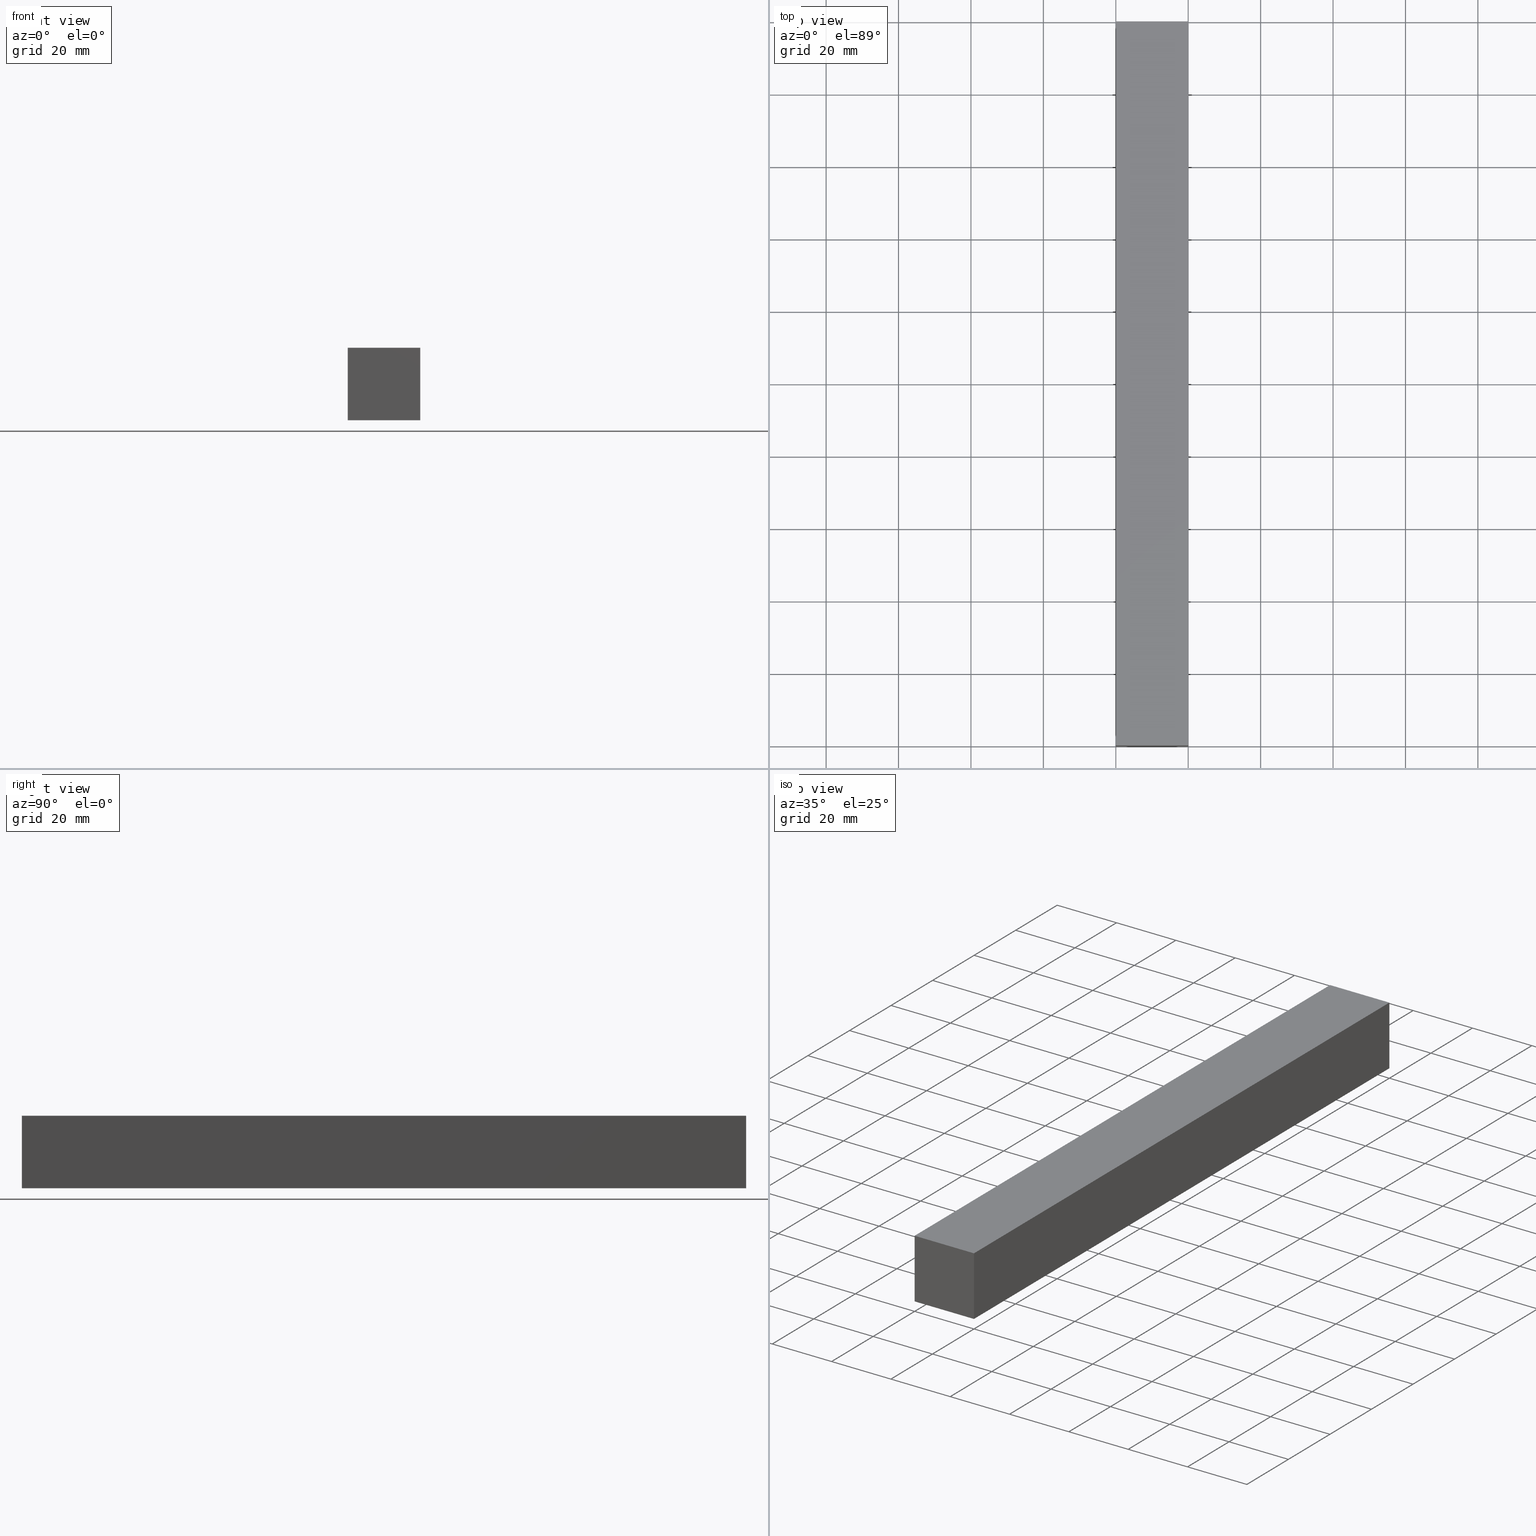
[diagram: canonical four-view strip — front | top / right | iso, engineering-drawing reading convention]
A machine part, canonical four-view strip (front | top / right | iso — engineering-drawing reading convention). The complete STEP part file that produces these views, byte-faithful:
ISO-10303-21;
HEADER;
FILE_DESCRIPTION (( 'STEP AP214' ),
    '1' );
FILE_NAME ('TM_340W_16.STEP',
    '2016-05-09T08:07:59',
    ( '' ),
    ( '' ),
    'SwSTEP 2.0',
    'SolidWorks 2015',
    '' );
FILE_SCHEMA (( 'AUTOMOTIVE_DESIGN' ));
ENDSEC;

DATA;
#1 = LINE ( 'NONE', #119, #151 ) ;
#2 = PLANE ( 'NONE',  #30 ) ;
#3 = DIRECTION ( 'NONE',  ( 1.000000000000000000, 0.0000000000000000000, 0.0000000000000000000 ) ) ;
#4 =( LENGTH_UNIT ( ) NAMED_UNIT ( * ) SI_UNIT ( .MILLI., .METRE. ) );
#5 = EDGE_CURVE ( 'NONE', #122, #221, #87, .T. ) ;
#6 = STYLED_ITEM ( 'NONE', ( #97 ), #179 ) ;
#7 = VERTEX_POINT ( 'NONE', #74 ) ;
#8 = DIRECTION ( 'NONE',  ( 0.0000000000000000000, 0.0000000000000000000, -1.000000000000000000 ) ) ;
#9 = UNCERTAINTY_MEASURE_WITH_UNIT (LENGTH_MEASURE( 1.000000000000000100E-005 ), #146, 'distance_accuracy_value', 'NONE');
#10 = DIRECTION ( 'NONE',  ( 0.0000000000000000000, 0.0000000000000000000, -1.000000000000000000 ) ) ;
#11 = APPLICATION_CONTEXT ( 'automotive_design' ) ;
#12 = FILL_AREA_STYLE_COLOUR ( '', #54 ) ;
#13 = FACE_OUTER_BOUND ( 'NONE', #182, .T. ) ;
#14 = SHAPE_REPRESENTATION ( 'TM_340W_16', ( #70, #158 ), #181 ) ;
#15 = ORIENTED_EDGE ( 'NONE', *, *, #77, .F. ) ;
#16 = EDGE_LOOP ( 'NONE', ( #113, #71, #28, #63 ) ) ;
#17 = EDGE_CURVE ( 'NONE', #152, #140, #156, .T. ) ;
#18 = MECHANICAL_DESIGN_GEOMETRIC_PRESENTATION_REPRESENTATION (  '', ( #226 ), #43 ) ;
#19 = ORIENTED_EDGE ( 'NONE', *, *, #112, .T. ) ;
#20 =( GEOMETRIC_REPRESENTATION_CONTEXT ( 3 ) GLOBAL_UNCERTAINTY_ASSIGNED_CONTEXT ( ( #85 ) ) GLOBAL_UNIT_ASSIGNED_CONTEXT ( ( #39, #229, #45 ) ) REPRESENTATION_CONTEXT ( 'NONE', 'WORKASPACE' ) );
#21 = DIRECTION ( 'NONE',  ( 0.0000000000000000000, 0.0000000000000000000, -1.000000000000000000 ) ) ;
#22 = SHAPE_DEFINITION_REPRESENTATION ( #157, #94 ) ;
#23 = ORIENTED_EDGE ( 'NONE', *, *, #129, .T. ) ;
#24 =( NAMED_UNIT ( * ) PLANE_ANGLE_UNIT ( ) SI_UNIT ( $, .RADIAN. ) );
#25 = LINE ( 'NONE', #109, #115 ) ;
#26 = DIRECTION ( 'NONE',  ( -1.000000000000000000, 0.0000000000000000000, 0.0000000000000000000 ) ) ;
#27 = PRODUCT_DEFINITION_SHAPE ( 'NONE', 'NONE',  #239 ) ;
#28 = ORIENTED_EDGE ( 'NONE', *, *, #150, .F. ) ;
#29 = EDGE_CURVE ( 'NONE', #32, #140, #201, .T. ) ;
#30 = AXIS2_PLACEMENT_3D ( 'NONE', #194, #111, #3 ) ;
#31 = AXIS2_PLACEMENT_3D ( 'NONE', #214, #195, #99 ) ;
#32 = VERTEX_POINT ( 'NONE', #101 ) ;
#33 = ADVANCED_FACE ( 'NONE', ( #203 ), #197, .F. ) ;
#34 = PRODUCT_RELATED_PRODUCT_CATEGORY ( 'part', '', ( #147 ) ) ;
#35 = VECTOR ( 'NONE', #127, 1000.000000000000000 ) ;
#36 = AXIS2_PLACEMENT_3D ( 'NONE', #233, #8, #26 ) ;
#37 = ADVANCED_FACE ( 'NONE', ( #209 ), #188, .F. ) ;
#38 = CARTESIAN_POINT ( 'NONE',  ( 0.0000000000000000000, 0.0000000000000000000, 0.0000000000000000000 ) ) ;
#39 =( LENGTH_UNIT ( ) NAMED_UNIT ( * ) SI_UNIT ( .MILLI., .METRE. ) );
#40 = AXIS2_PLACEMENT_3D ( 'NONE', #160, #172, #108 ) ;
#41 = CARTESIAN_POINT ( 'NONE',  ( 0.0000000000000000000, 0.0000000000000000000, 20.00000000000000000 ) ) ;
#42 = EDGE_CURVE ( 'NONE', #7, #183, #80, .T. ) ;
#43 =( GEOMETRIC_REPRESENTATION_CONTEXT ( 3 ) GLOBAL_UNCERTAINTY_ASSIGNED_CONTEXT ( ( #68 ) ) GLOBAL_UNIT_ASSIGNED_CONTEXT ( ( #199, #24, #213 ) ) REPRESENTATION_CONTEXT ( 'NONE', 'WORKASPACE' ) );
#44 = DIRECTION ( 'NONE',  ( -1.000000000000000000, 0.0000000000000000000, 0.0000000000000000000 ) ) ;
#45 =( NAMED_UNIT ( * ) SI_UNIT ( $, .STERADIAN. ) SOLID_ANGLE_UNIT ( ) );
#46 = PLANE ( 'NONE',  #89 ) ;
#47 = ORIENTED_EDGE ( 'NONE', *, *, #5, .F. ) ;
#48 = LINE ( 'NONE', #82, #171 ) ;
#49 = DIRECTION ( 'NONE',  ( 0.0000000000000000000, 0.0000000000000000000, 1.000000000000000000 ) ) ;
#50 = VECTOR ( 'NONE', #21, 1000.000000000000000 ) ;
#51 = ORIENTED_EDGE ( 'NONE', *, *, #224, .T. ) ;
#52 = ORIENTED_EDGE ( 'NONE', *, *, #53, .T. ) ;
#53 = EDGE_CURVE ( 'NONE', #183, #152, #164, .T. ) ;
#54 = COLOUR_RGB ( '',0.7921568627450980000, 0.8196078431372548800, 0.9333333333333333500 ) ;
#55 = APPLICATION_PROTOCOL_DEFINITION ( 'draft international standard', 'automotive_design', 1998, #139 ) ;
#56 = VECTOR ( 'NONE', #102, 1000.000000000000000 ) ;
#57 = ORIENTED_EDGE ( 'NONE', *, *, #131, .T. ) ;
#58 = DIRECTION ( 'NONE',  ( 0.0000000000000000000, 0.0000000000000000000, 1.000000000000000000 ) ) ;
#59 = ORIENTED_EDGE ( 'NONE', *, *, #42, .F. ) ;
#60 = PLANE ( 'NONE',  #138 ) ;
#61 = CARTESIAN_POINT ( 'NONE',  ( 20.00000000000000000, 0.0000000000000000000, 20.00000000000000000 ) ) ;
#62 = ADVANCED_FACE ( 'NONE', ( #126 ), #141, .F. ) ;
#63 = ORIENTED_EDGE ( 'NONE', *, *, #131, .F. ) ;
#64 = CARTESIAN_POINT ( 'NONE',  ( 20.00000000000000000, 0.0000000000000000000, 0.0000000000000000000 ) ) ;
#65 = EDGE_LOOP ( 'NONE', ( #167, #59, #132, #202 ) ) ;
#66 = FILL_AREA_STYLE_COLOUR ( '', #67 ) ;
#67 = COLOUR_RGB ( '',0.7921568627450980000, 0.8196078431372548800, 0.9333333333333333500 ) ;
#68 = UNCERTAINTY_MEASURE_WITH_UNIT (LENGTH_MEASURE( 1.000000000000000100E-005 ), #199, 'distance_accuracy_value', 'NONE');
#69 = VERTEX_POINT ( 'NONE', #121 ) ;
#70 = AXIS2_PLACEMENT_3D ( 'NONE', #106, #186, #142 ) ;
#71 = ORIENTED_EDGE ( 'NONE', *, *, #53, .F. ) ;
#72 = SHAPE_DEFINITION_REPRESENTATION ( #103, #14 ) ;
#73 = ADVANCED_BREP_SHAPE_REPRESENTATION ( '', ( #179, #31 ), #20 ) ;
#74 = CARTESIAN_POINT ( 'NONE',  ( 0.0000000000000000000, 200.0000000000000000, 0.0000000000000000000 ) ) ;
#75 = CARTESIAN_POINT ( 'NONE',  ( 20.00000000000000000, 1000.000000000000000, 20.00000000000000000 ) ) ;
#76 = DIRECTION ( 'NONE',  ( 1.000000000000000000, 0.0000000000000000000, 0.0000000000000000000 ) ) ;
#77 = EDGE_CURVE ( 'NONE', #69, #152, #96, .T. ) ;
#78 = PRODUCT_CONTEXT ( 'NONE', #117, 'mechanical' ) ;
#79 = CARTESIAN_POINT ( 'NONE',  ( 0.0000000000000000000, 0.0000000000000000000, 0.0000000000000000000 ) ) ;
#80 = LINE ( 'NONE', #81, #56 ) ;
#81 = CARTESIAN_POINT ( 'NONE',  ( 0.0000000000000000000, 1000.000000000000000, 0.0000000000000000000 ) ) ;
#82 = CARTESIAN_POINT ( 'NONE',  ( 0.0000000000000000000, 200.0000000000000000, 0.0000000000000000000 ) ) ;
#83 = PRODUCT_CONTEXT ( 'NONE', #11, 'mechanical' ) ;
#84 = DIRECTION ( 'NONE',  ( 0.0000000000000000000, -1.000000000000000000, 0.0000000000000000000 ) ) ;
#85 = UNCERTAINTY_MEASURE_WITH_UNIT (LENGTH_MEASURE( 1.000000000000000100E-005 ), #39, 'distance_accuracy_value', 'NONE');
#86 = DIRECTION ( 'NONE',  ( 0.0000000000000000000, 0.0000000000000000000, -1.000000000000000000 ) ) ;
#87 = LINE ( 'NONE', #232, #165 ) ;
#88 = UNCERTAINTY_MEASURE_WITH_UNIT (LENGTH_MEASURE( 1.000000000000000100E-005 ), #4, 'distance_accuracy_value', 'NONE');
#89 = AXIS2_PLACEMENT_3D ( 'NONE', #169, #49, #123 ) ;
#90 = FACE_OUTER_BOUND ( 'NONE', #162, .T. ) ;
#91 = VECTOR ( 'NONE', #10, 1000.000000000000000 ) ;
#92 = SURFACE_STYLE_USAGE ( .BOTH. , #133 ) ;
#93 = LINE ( 'NONE', #61, #50 ) ;
#94 = SHAPE_REPRESENTATION ( 'rubber foam', ( #31 ), #20 ) ;
#95 =( NAMED_UNIT ( * ) PLANE_ANGLE_UNIT ( ) SI_UNIT ( $, .RADIAN. ) );
#96 = LINE ( 'NONE', #208, #35 ) ;
#97 = PRESENTATION_STYLE_ASSIGNMENT (( #217 ) ) ;
#98 = FACE_OUTER_BOUND ( 'NONE', #65, .T. ) ;
#99 = DIRECTION ( 'NONE',  ( 1.000000000000000000, 0.0000000000000000000, 0.0000000000000000000 ) ) ;
#100 = DIRECTION ( 'NONE',  ( -1.000000000000000000, 0.0000000000000000000, 0.0000000000000000000 ) ) ;
#101 = CARTESIAN_POINT ( 'NONE',  ( 20.00000000000000000, 200.0000000000000000, 20.00000000000000000 ) ) ;
#102 = DIRECTION ( 'NONE',  ( 0.0000000000000000000, -1.000000000000000000, 0.0000000000000000000 ) ) ;
#103 = PRODUCT_DEFINITION_SHAPE ( 'NONE', 'NONE',  #116 ) ;
#104 = ADVANCED_FACE ( 'NONE', ( #90 ), #2, .T. ) ;
#105 = ORIENTED_EDGE ( 'NONE', *, *, #42, .T. ) ;
#106 = CARTESIAN_POINT ( 'NONE',  ( 0.0000000000000000000, 0.0000000000000000000, 0.0000000000000000000 ) ) ;
#107 = MECHANICAL_DESIGN_GEOMETRIC_PRESENTATION_REPRESENTATION (  '', ( #6 ), #218 ) ;
#108 = DIRECTION ( 'NONE',  ( 1.000000000000000000, 0.0000000000000000000, 0.0000000000000000000 ) ) ;
#109 = CARTESIAN_POINT ( 'NONE',  ( 20.00000000000000000, 0.0000000000000000000, 0.0000000000000000000 ) ) ;
#110 = ORIENTED_EDGE ( 'NONE', *, *, #210, .F. ) ;
#111 = DIRECTION ( 'NONE',  ( -0.0000000000000000000, 1.000000000000000000, 0.0000000000000000000 ) ) ;
#112 = EDGE_CURVE ( 'NONE', #32, #122, #180, .T. ) ;
#113 = ORIENTED_EDGE ( 'NONE', *, *, #17, .F. ) ;
#114 = SURFACE_STYLE_FILL_AREA ( #161 ) ;
#115 = VECTOR ( 'NONE', #137, 1000.000000000000000 ) ;
#116 = PRODUCT_DEFINITION ( 'UNKNOWN', '', #227, #136 ) ;
#117 = APPLICATION_CONTEXT ( 'automotive_design' ) ;
#118 = FILL_AREA_STYLE ('',( #12 ) ) ;
#119 = CARTESIAN_POINT ( 'NONE',  ( 20.00000000000000000, 200.0000000000000000, 0.0000000000000000000 ) ) ;
#120 = DIRECTION ( 'NONE',  ( -0.0000000000000000000, 1.000000000000000000, 0.0000000000000000000 ) ) ;
#121 = CARTESIAN_POINT ( 'NONE',  ( 0.0000000000000000000, 200.0000000000000000, 20.00000000000000000 ) ) ;
#122 = VERTEX_POINT ( 'NONE', #200 ) ;
#123 = DIRECTION ( 'NONE',  ( 1.000000000000000000, 0.0000000000000000000, 0.0000000000000000000 ) ) ;
#124 = PRODUCT_RELATED_PRODUCT_CATEGORY ( 'part', '', ( #125 ) ) ;
#125 = PRODUCT ( 'rubber foam', 'rubber foam', '', ( #78 ) ) ;
#126 = FACE_OUTER_BOUND ( 'NONE', #215, .T. ) ;
#127 = DIRECTION ( 'NONE',  ( 0.0000000000000000000, -1.000000000000000000, 0.0000000000000000000 ) ) ;
#128 = AXIS2_PLACEMENT_3D ( 'NONE', #228, #100, #149 ) ;
#129 = EDGE_CURVE ( 'NONE', #122, #7, #1, .T. ) ;
#130 = ORIENTED_EDGE ( 'NONE', *, *, #224, .F. ) ;
#131 = EDGE_CURVE ( 'NONE', #140, #221, #93, .T. ) ;
#132 = ORIENTED_EDGE ( 'NONE', *, *, #129, .F. ) ;
#133 = SURFACE_SIDE_STYLE ('',( #166 ) ) ;
#134 = PRODUCT_DEFINITION_FORMATION_WITH_SPECIFIED_SOURCE ( 'ANY', '', #125, .NOT_KNOWN. ) ;
#135 = APPLICATION_PROTOCOL_DEFINITION ( 'draft international standard', 'automotive_design', 1998, #117 ) ;
#136 = PRODUCT_DEFINITION_CONTEXT ( 'detailed design', #205, 'design' ) ;
#137 = DIRECTION ( 'NONE',  ( -1.000000000000000000, 0.0000000000000000000, 0.0000000000000000000 ) ) ;
#138 = AXIS2_PLACEMENT_3D ( 'NONE', #235, #191, #86 ) ;
#139 = APPLICATION_CONTEXT ( 'automotive_design' ) ;
#140 = VERTEX_POINT ( 'NONE', #211 ) ;
#141 = PLANE ( 'NONE',  #128 ) ;
#142 = DIRECTION ( 'NONE',  ( 1.000000000000000000, 0.0000000000000000000, 0.0000000000000000000 ) ) ;
#143 =( NAMED_UNIT ( * ) SI_UNIT ( $, .STERADIAN. ) SOLID_ANGLE_UNIT ( ) );
#144 = DIRECTION ( 'NONE',  ( 0.0000000000000000000, 0.0000000000000000000, 1.000000000000000000 ) ) ;
#145 = VECTOR ( 'NONE', #236, 1000.000000000000000 ) ;
#146 =( LENGTH_UNIT ( ) NAMED_UNIT ( * ) SI_UNIT ( .MILLI., .METRE. ) );
#147 = PRODUCT ( 'TM_340W_16', 'TM_340W_16', '', ( #83 ) ) ;
#148 = DIRECTION ( 'NONE',  ( 0.0000000000000000000, -1.000000000000000000, 0.0000000000000000000 ) ) ;
#149 = DIRECTION ( 'NONE',  ( 0.0000000000000000000, 0.0000000000000000000, 1.000000000000000000 ) ) ;
#150 = EDGE_CURVE ( 'NONE', #221, #183, #25, .T. ) ;
#151 = VECTOR ( 'NONE', #44, 1000.000000000000000 ) ;
#152 = VERTEX_POINT ( 'NONE', #41 ) ;
#153 = ADVANCED_FACE ( 'NONE', ( #13 ), #60, .F. ) ;
#154 = VECTOR ( 'NONE', #204, 1000.000000000000000 ) ;
#155 = PRESENTATION_STYLE_ASSIGNMENT (( #92 ) ) ;
#156 = LINE ( 'NONE', #176, #145 ) ;
#157 = PRODUCT_DEFINITION_SHAPE ( 'NONE', 'NONE',  #187 ) ;
#158 = AXIS2_PLACEMENT_3D ( 'NONE', #38, #144, #173 ) ;
#159 = APPLICATION_PROTOCOL_DEFINITION ( 'draft international standard', 'automotive_design', 1998, #11 ) ;
#160 = CARTESIAN_POINT ( 'NONE',  ( 0.0000000000000000000, 0.0000000000000000000, 0.0000000000000000000 ) ) ;
#161 = FILL_AREA_STYLE ('',( #66 ) ) ;
#162 = EDGE_LOOP ( 'NONE', ( #51, #19, #23, #222 ) ) ;
#163 = CARTESIAN_POINT ( 'NONE',  ( 0.0000000000000000000, 0.0000000000000000000, 0.0000000000000000000 ) ) ;
#164 = LINE ( 'NONE', #79, #154 ) ;
#165 = VECTOR ( 'NONE', #84, 1000.000000000000000 ) ;
#166 = SURFACE_STYLE_FILL_AREA ( #118 ) ;
#167 = ORIENTED_EDGE ( 'NONE', *, *, #150, .T. ) ;
#168 = APPLICATION_PROTOCOL_DEFINITION ( 'draft international standard', 'automotive_design', 1998, #205 ) ;
#169 = CARTESIAN_POINT ( 'NONE',  ( 20.00000000000000000, 1000.000000000000000, 0.0000000000000000000 ) ) ;
#170 = ITEM_DEFINED_TRANSFORMATION ( 'NONE', 'NONE', #158,  #31 ) ;
#171 = VECTOR ( 'NONE', #58, 1000.000000000000000 ) ;
#172 = DIRECTION ( 'NONE',  ( 0.0000000000000000000, 0.0000000000000000000, 1.000000000000000000 ) ) ;
#173 = DIRECTION ( 'NONE',  ( 1.000000000000000000, 0.0000000000000000000, 0.0000000000000000000 ) ) ;
#174 = LINE ( 'NONE', #175, #223 ) ;
#175 = CARTESIAN_POINT ( 'NONE',  ( 0.0000000000000000000, 200.0000000000000000, 20.00000000000000000 ) ) ;
#176 = CARTESIAN_POINT ( 'NONE',  ( 0.0000000000000000000, 0.0000000000000000000, 20.00000000000000000 ) ) ;
#177 = ORIENTED_EDGE ( 'NONE', *, *, #29, .F. ) ;
#178 = CARTESIAN_POINT ( 'NONE',  ( 0.0000000000000000000, 0.0000000000000000000, 0.0000000000000000000 ) ) ;
#179 = MANIFOLD_SOLID_BREP ( '���߰�1', #193 ) ;
#180 = LINE ( 'NONE', #190, #91 ) ;
#181 =( GEOMETRIC_REPRESENTATION_CONTEXT ( 3 ) GLOBAL_UNCERTAINTY_ASSIGNED_CONTEXT ( ( #88 ) ) GLOBAL_UNIT_ASSIGNED_CONTEXT ( ( #4, #95, #219 ) ) REPRESENTATION_CONTEXT ( 'NONE', 'WORKASPACE' ) );
#182 = EDGE_LOOP ( 'NONE', ( #52, #15, #110, #105 ) ) ;
#183 = VERTEX_POINT ( 'NONE', #163 ) ;
#184 = CONTEXT_DEPENDENT_SHAPE_REPRESENTATION ( #206, #27 ) ;
#185 = EDGE_LOOP ( 'NONE', ( #189, #177, #130, #198 ) ) ;
#186 = DIRECTION ( 'NONE',  ( 0.0000000000000000000, 0.0000000000000000000, 1.000000000000000000 ) ) ;
#187 = PRODUCT_DEFINITION ( 'UNKNOWN', '', #134, #192 ) ;
#188 = PLANE ( 'NONE',  #36 ) ;
#189 = ORIENTED_EDGE ( 'NONE', *, *, #17, .T. ) ;
#190 = CARTESIAN_POINT ( 'NONE',  ( 20.00000000000000000, 200.0000000000000000, 20.00000000000000000 ) ) ;
#191 = DIRECTION ( 'NONE',  ( 1.000000000000000000, 0.0000000000000000000, 0.0000000000000000000 ) ) ;
#192 = PRODUCT_DEFINITION_CONTEXT ( 'detailed design', #139, 'design' ) ;
#193 = CLOSED_SHELL ( 'NONE', ( #37, #62, #237, #153, #104, #33 ) ) ;
#194 = CARTESIAN_POINT ( 'NONE',  ( 0.0000000000000000000, 200.0000000000000000, 0.0000000000000000000 ) ) ;
#195 = DIRECTION ( 'NONE',  ( 0.0000000000000000000, 0.0000000000000000000, 1.000000000000000000 ) ) ;
#196 =( NAMED_UNIT ( * ) PLANE_ANGLE_UNIT ( ) SI_UNIT ( $, .RADIAN. ) );
#197 = PLANE ( 'NONE',  #220 ) ;
#198 = ORIENTED_EDGE ( 'NONE', *, *, #77, .T. ) ;
#199 =( LENGTH_UNIT ( ) NAMED_UNIT ( * ) SI_UNIT ( .MILLI., .METRE. ) );
#200 = CARTESIAN_POINT ( 'NONE',  ( 20.00000000000000000, 200.0000000000000000, 0.0000000000000000000 ) ) ;
#201 = LINE ( 'NONE', #75, #238 ) ;
#202 = ORIENTED_EDGE ( 'NONE', *, *, #5, .T. ) ;
#203 = FACE_OUTER_BOUND ( 'NONE', #16, .T. ) ;
#204 = DIRECTION ( 'NONE',  ( 0.0000000000000000000, 0.0000000000000000000, 1.000000000000000000 ) ) ;
#205 = APPLICATION_CONTEXT ( 'automotive_design' ) ;
#206 =( REPRESENTATION_RELATIONSHIP ('NONE','NONE', #14, #94 ) REPRESENTATION_RELATIONSHIP_WITH_TRANSFORMATION ( #170 )SHAPE_REPRESENTATION_RELATIONSHIP( ) );
#207 = DIRECTION ( 'NONE',  ( 1.000000000000000000, 0.0000000000000000000, 0.0000000000000000000 ) ) ;
#208 = CARTESIAN_POINT ( 'NONE',  ( 0.0000000000000000000, 1000.000000000000000, 20.00000000000000000 ) ) ;
#209 = FACE_OUTER_BOUND ( 'NONE', #185, .T. ) ;
#210 = EDGE_CURVE ( 'NONE', #7, #69, #48, .T. ) ;
#211 = CARTESIAN_POINT ( 'NONE',  ( 20.00000000000000000, 0.0000000000000000000, 20.00000000000000000 ) ) ;
#212 = PRESENTATION_LAYER_ASSIGNMENT (  '', '', ( #226 ) ) ;
#213 =( NAMED_UNIT ( * ) SI_UNIT ( $, .STERADIAN. ) SOLID_ANGLE_UNIT ( ) );
#214 = CARTESIAN_POINT ( 'NONE',  ( 0.0000000000000000000, 0.0000000000000000000, 0.0000000000000000000 ) ) ;
#215 = EDGE_LOOP ( 'NONE', ( #57, #47, #230, #234 ) ) ;
#216 = SURFACE_SIDE_STYLE ('',( #114 ) ) ;
#217 = SURFACE_STYLE_USAGE ( .BOTH. , #216 ) ;
#218 =( GEOMETRIC_REPRESENTATION_CONTEXT ( 3 ) GLOBAL_UNCERTAINTY_ASSIGNED_CONTEXT ( ( #9 ) ) GLOBAL_UNIT_ASSIGNED_CONTEXT ( ( #146, #196, #143 ) ) REPRESENTATION_CONTEXT ( 'NONE', 'WORKASPACE' ) );
#219 =( NAMED_UNIT ( * ) SI_UNIT ( $, .STERADIAN. ) SOLID_ANGLE_UNIT ( ) );
#220 = AXIS2_PLACEMENT_3D ( 'NONE', #178, #120, #207 ) ;
#221 = VERTEX_POINT ( 'NONE', #64 ) ;
#222 = ORIENTED_EDGE ( 'NONE', *, *, #210, .T. ) ;
#223 = VECTOR ( 'NONE', #76, 1000.000000000000000 ) ;
#224 = EDGE_CURVE ( 'NONE', #69, #32, #174, .T. ) ;
#225 = PRESENTATION_LAYER_ASSIGNMENT (  '', '', ( #6 ) ) ;
#226 = STYLED_ITEM ( 'NONE', ( #155 ), #73 ) ;
#227 = PRODUCT_DEFINITION_FORMATION_WITH_SPECIFIED_SOURCE ( 'ANY', '', #147, .NOT_KNOWN. ) ;
#228 = CARTESIAN_POINT ( 'NONE',  ( 20.00000000000000000, 1000.000000000000000, 20.00000000000000000 ) ) ;
#229 =( NAMED_UNIT ( * ) PLANE_ANGLE_UNIT ( ) SI_UNIT ( $, .RADIAN. ) );
#230 = ORIENTED_EDGE ( 'NONE', *, *, #112, .F. ) ;
#231 = SHAPE_REPRESENTATION_RELATIONSHIP ( 'NONE' , 'NONE' ,  #94, #73 ) ;
#232 = CARTESIAN_POINT ( 'NONE',  ( 20.00000000000000000, 1000.000000000000000, 0.0000000000000000000 ) ) ;
#233 = CARTESIAN_POINT ( 'NONE',  ( 0.0000000000000000000, 1000.000000000000000, 20.00000000000000000 ) ) ;
#234 = ORIENTED_EDGE ( 'NONE', *, *, #29, .T. ) ;
#235 = CARTESIAN_POINT ( 'NONE',  ( 0.0000000000000000000, 1000.000000000000000, 0.0000000000000000000 ) ) ;
#236 = DIRECTION ( 'NONE',  ( 1.000000000000000000, 0.0000000000000000000, 0.0000000000000000000 ) ) ;
#237 = ADVANCED_FACE ( 'NONE', ( #98 ), #46, .F. ) ;
#238 = VECTOR ( 'NONE', #148, 1000.000000000000000 ) ;
#239 = NEXT_ASSEMBLY_USAGE_OCCURRENCE ( 'NAUO1', ' ', ' ', #116, #187, $ ) ;
ENDSEC;
END-ISO-10303-21;
